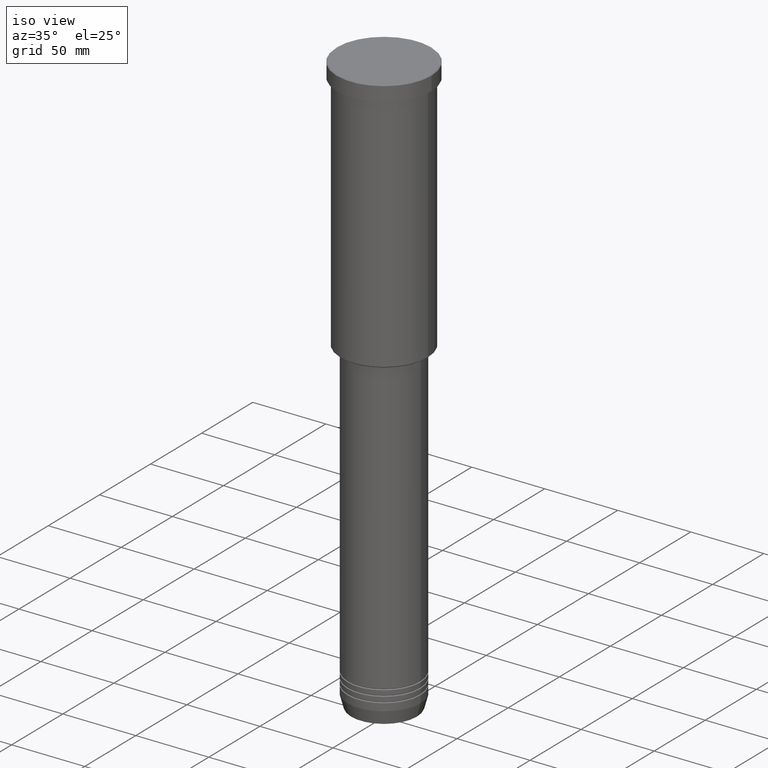
[diagram: clean part render]
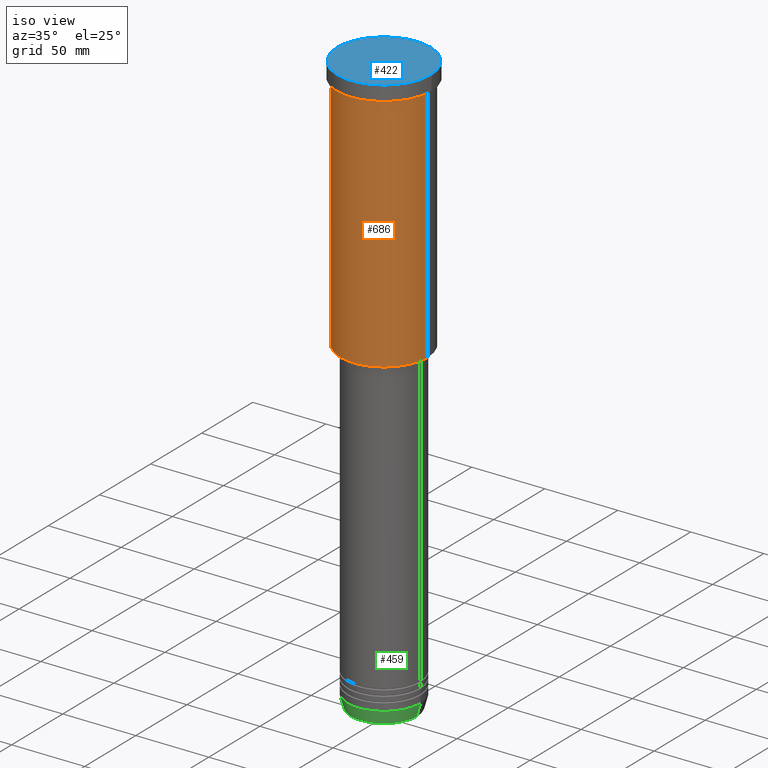
[diagram: same view with three faces highlighted in distinct colors, each labeled with its STEP entity id]
A machine part, iso view with three faces highlighted in distinct colors.
Their STEP definitions:

[orange] entity #686 — the highlighted cylindrical surface (partial cylindrical patch) has radius 30 mm, axis along (-0, -0, 1).
#7 = CARTESIAN_POINT ( 'NONE',  ( 0.000000000000000000, 0.000000000000000000, 0.000000000000000000 ) ) ;
#42 = CARTESIAN_POINT ( 'NONE',  ( 30.00000000000000000, 0.000000000000000000, -10.99999999999999289 ) ) ;
#57 = CARTESIAN_POINT ( 'NONE',  ( 0.000000000000000000, 0.000000000000000000, -10.99999999999999289 ) ) ;
#73 = EDGE_CURVE ( 'NONE', #720, #543, #418, .T. ) ;
#86 = VECTOR ( 'NONE', #856, 1000.000000000000000 ) ;
#97 = FACE_OUTER_BOUND ( 'NONE', #761, .T. ) ;
#139 = AXIS2_PLACEMENT_3D ( 'NONE', #57, #499, #247 ) ;
#201 = LINE ( 'NONE', #546, #616 ) ;
#247 = DIRECTION ( 'NONE',  ( 1.000000000000000000, 0.000000000000000000, 0.000000000000000000 ) ) ;
#279 = ORIENTED_EDGE ( 'NONE', *, *, #73, .F. ) ;
#316 = CARTESIAN_POINT ( 'NONE',  ( -30.00000000000000000, 3.673940397442059178E-15, -10.99999999999999289 ) ) ;
#350 = ORIENTED_EDGE ( 'NONE', *, *, #725, .T. ) ;
#385 = AXIS2_PLACEMENT_3D ( 'NONE', #7, #737, #929 ) ;
#418 = CIRCLE ( 'NONE', #139, 30.00000000000000000 ) ;
#425 = DIRECTION ( 'NONE',  ( -1.000000000000000000, 0.000000000000000000, 0.000000000000000000 ) ) ;
#499 = DIRECTION ( 'NONE',  ( -0.000000000000000000, -0.000000000000000000, 1.000000000000000000 ) ) ;
#536 = VERTEX_POINT ( 'NONE', #862 ) ;
#542 = AXIS2_PLACEMENT_3D ( 'NONE', #786, #1154, #425 ) ;
#543 = VERTEX_POINT ( 'NONE', #42 ) ;
#546 = CARTESIAN_POINT ( 'NONE',  ( -30.00000000000000000, 3.673940397442059178E-15, 0.000000000000000000 ) ) ;
#552 = CYLINDRICAL_SURFACE ( 'NONE', #385, 30.00000000000000000 ) ;
#563 = DIRECTION ( 'NONE',  ( -0.000000000000000000, -0.000000000000000000, 1.000000000000000000 ) ) ;
#616 = VECTOR ( 'NONE', #563, 1000.000000000000000 ) ;
#681 = CARTESIAN_POINT ( 'NONE',  ( 30.00000000000000000, 0.000000000000000000, 0.000000000000000000 ) ) ;
#686 = ADVANCED_FACE ( 'NONE', ( #97 ), #552, .T. ) ;
#720 = VERTEX_POINT ( 'NONE', #316 ) ;
#725 = EDGE_CURVE ( 'NONE', #1073, #543, #1146, .T. ) ;
#737 = DIRECTION ( 'NONE',  ( -0.000000000000000000, -0.000000000000000000, 1.000000000000000000 ) ) ;
#761 = EDGE_LOOP ( 'NONE', ( #894, #897, #350, #279 ) ) ;
#786 = CARTESIAN_POINT ( 'NONE',  ( 0.000000000000000000, 0.000000000000000000, -175.5000000000000284 ) ) ;
#856 = DIRECTION ( 'NONE',  ( -0.000000000000000000, -0.000000000000000000, 1.000000000000000000 ) ) ;
#862 = CARTESIAN_POINT ( 'NONE',  ( -30.00000000000000000, 3.673940397442059178E-15, -175.5000000000000284 ) ) ;
#894 = ORIENTED_EDGE ( 'NONE', *, *, #963, .F. ) ;
#897 = ORIENTED_EDGE ( 'NONE', *, *, #932, .T. ) ;
#929 = DIRECTION ( 'NONE',  ( 1.000000000000000000, 0.000000000000000000, 0.000000000000000000 ) ) ;
#932 = EDGE_CURVE ( 'NONE', #536, #1073, #1067, .T. ) ;
#963 = EDGE_CURVE ( 'NONE', #536, #720, #201, .T. ) ;
#1067 = CIRCLE ( 'NONE', #542, 30.00000000000000000 ) ;
#1073 = VERTEX_POINT ( 'NONE', #1110 ) ;
#1110 = CARTESIAN_POINT ( 'NONE',  ( 30.00000000000000000, 0.000000000000000000, -175.5000000000000284 ) ) ;
#1146 = LINE ( 'NONE', #681, #86 ) ;
#1154 = DIRECTION ( 'NONE',  ( -0.000000000000000000, -0.000000000000000000, 1.000000000000000000 ) ) ;

[blue] entity #422 — the highlighted planar face has unit normal (0, -0, 1).
#151 = DIRECTION ( 'NONE',  ( 1.000000000000000000, 0.000000000000000000, 0.000000000000000000 ) ) ;
#158 = ORIENTED_EDGE ( 'NONE', *, *, #573, .T. ) ;
#167 = DIRECTION ( 'NONE',  ( 1.000000000000000000, 0.000000000000000000, 0.000000000000000000 ) ) ;
#179 = AXIS2_PLACEMENT_3D ( 'NONE', #920, #1009, #363 ) ;
#267 = VERTEX_POINT ( 'NONE', #631 ) ;
#272 = CARTESIAN_POINT ( 'NONE',  ( -32.00000000000002842, 0.000000000000000000, 0.000000000000000000 ) ) ;
#292 = EDGE_LOOP ( 'NONE', ( #545, #158 ) ) ;
#339 = DIRECTION ( 'NONE',  ( -0.000000000000000000, -0.000000000000000000, 1.000000000000000000 ) ) ;
#363 = DIRECTION ( 'NONE',  ( 1.000000000000000000, 0.000000000000000000, 0.000000000000000000 ) ) ;
#366 = AXIS2_PLACEMENT_3D ( 'NONE', #973, #339, #151 ) ;
#404 = DIRECTION ( 'NONE',  ( 0.000000000000000000, -0.000000000000000000, 1.000000000000000000 ) ) ;
#422 = ADVANCED_FACE ( 'NONE', ( #437 ), #701, .T. ) ;
#437 = FACE_OUTER_BOUND ( 'NONE', #292, .T. ) ;
#545 = ORIENTED_EDGE ( 'NONE', *, *, #863, .T. ) ;
#560 = CIRCLE ( 'NONE', #366, 32.00000000000002842 ) ;
#573 = EDGE_CURVE ( 'NONE', #267, #1048, #1156, .T. ) ;
#631 = CARTESIAN_POINT ( 'NONE',  ( 32.00000000000002842, 3.949485927250216417E-15, 0.000000000000000000 ) ) ;
#701 = PLANE ( 'NONE',  #1065 ) ;
#863 = EDGE_CURVE ( 'NONE', #1048, #267, #560, .T. ) ;
#920 = CARTESIAN_POINT ( 'NONE',  ( 0.000000000000000000, 0.000000000000000000, 0.000000000000000000 ) ) ;
#973 = CARTESIAN_POINT ( 'NONE',  ( 0.000000000000000000, 0.000000000000000000, 0.000000000000000000 ) ) ;
#991 = CARTESIAN_POINT ( 'NONE',  ( 0.000000000000000000, 0.000000000000000000, 0.000000000000000000 ) ) ;
#1009 = DIRECTION ( 'NONE',  ( -0.000000000000000000, -0.000000000000000000, 1.000000000000000000 ) ) ;
#1048 = VERTEX_POINT ( 'NONE', #272 ) ;
#1065 = AXIS2_PLACEMENT_3D ( 'NONE', #991, #404, #167 ) ;
#1156 = CIRCLE ( 'NONE', #179, 32.00000000000002842 ) ;

[green] entity #459 — the highlighted conical surface has half-angle 15 deg.
#26 = VERTEX_POINT ( 'NONE', #149 ) ;
#93 = EDGE_CURVE ( 'NONE', #26, #783, #708, .T. ) ;
#95 = VERTEX_POINT ( 'NONE', #251 ) ;
#113 = EDGE_CURVE ( 'NONE', #95, #1119, #572, .T. ) ;
#125 = CARTESIAN_POINT ( 'NONE',  ( 25.00000000000000000, 0.000000000000000000, -391.0000000000000000 ) ) ;
#149 = CARTESIAN_POINT ( 'NONE',  ( -22.68775668727494477, 2.920032929279452581E-15, -399.6294095225512706 ) ) ;
#222 = EDGE_CURVE ( 'NONE', #26, #95, #349, .T. ) ;
#251 = CARTESIAN_POINT ( 'NONE',  ( -25.00000000000000000, 3.061616997868383043E-15, -391.0000000000000000 ) ) ;
#269 = CARTESIAN_POINT ( 'NONE',  ( 25.00000000000000000, 0.000000000000000000, -391.0000000000000000 ) ) ;
#281 = DIRECTION ( 'NONE',  ( 0.2588190451025215166, 0.000000000000000000, 0.9659258262890679791 ) ) ;
#288 = VECTOR ( 'NONE', #281, 1000.000000000000114 ) ;
#303 = AXIS2_PLACEMENT_3D ( 'NONE', #367, #828, #438 ) ;
#304 = CONICAL_SURFACE ( 'NONE', #674, 25.00000000000000000, 0.2617993877991502960 ) ;
#349 = LINE ( 'NONE', #1182, #1155 ) ;
#358 = LINE ( 'NONE', #269, #288 ) ;
#367 = CARTESIAN_POINT ( 'NONE',  ( 0.000000000000000000, 0.000000000000000000, -391.0000000000000000 ) ) ;
#431 = DIRECTION ( 'NONE',  ( 1.000000000000000000, 0.000000000000000000, 0.000000000000000000 ) ) ;
#438 = DIRECTION ( 'NONE',  ( 1.000000000000000000, 0.000000000000000000, 0.000000000000000000 ) ) ;
#459 = ADVANCED_FACE ( 'NONE', ( #589 ), #304, .T. ) ;
#534 = DIRECTION ( 'NONE',  ( -0.2588190451025215166, 3.169619151431774802E-17, 0.9659258262890679791 ) ) ;
#554 = ORIENTED_EDGE ( 'NONE', *, *, #583, .T. ) ;
#572 = CIRCLE ( 'NONE', #303, 25.00000000000000000 ) ;
#583 = EDGE_CURVE ( 'NONE', #783, #1119, #358, .T. ) ;
#589 = FACE_OUTER_BOUND ( 'NONE', #824, .T. ) ;
#614 = DIRECTION ( 'NONE',  ( -0.000000000000000000, -0.000000000000000000, 1.000000000000000000 ) ) ;
#674 = AXIS2_PLACEMENT_3D ( 'NONE', #772, #1082, #431 ) ;
#697 = CARTESIAN_POINT ( 'NONE',  ( 0.000000000000000000, 0.000000000000000000, -399.6294095225512706 ) ) ;
#708 = CIRCLE ( 'NONE', #846, 22.68775668727494477 ) ;
#739 = ORIENTED_EDGE ( 'NONE', *, *, #113, .F. ) ;
#772 = CARTESIAN_POINT ( 'NONE',  ( 0.000000000000000000, 0.000000000000000000, -391.0000000000000000 ) ) ;
#783 = VERTEX_POINT ( 'NONE', #1128 ) ;
#824 = EDGE_LOOP ( 'NONE', ( #1161, #855, #554, #739 ) ) ;
#828 = DIRECTION ( 'NONE',  ( -0.000000000000000000, -0.000000000000000000, 1.000000000000000000 ) ) ;
#846 = AXIS2_PLACEMENT_3D ( 'NONE', #697, #614, #1072 ) ;
#855 = ORIENTED_EDGE ( 'NONE', *, *, #93, .T. ) ;
#1072 = DIRECTION ( 'NONE',  ( 1.000000000000000000, 0.000000000000000000, 0.000000000000000000 ) ) ;
#1082 = DIRECTION ( 'NONE',  ( -0.000000000000000000, -0.000000000000000000, 1.000000000000000000 ) ) ;
#1119 = VERTEX_POINT ( 'NONE', #125 ) ;
#1128 = CARTESIAN_POINT ( 'NONE',  ( 22.68775668727494477, 0.000000000000000000, -399.6294095225512706 ) ) ;
#1155 = VECTOR ( 'NONE', #534, 1000.000000000000114 ) ;
#1161 = ORIENTED_EDGE ( 'NONE', *, *, #222, .F. ) ;
#1182 = CARTESIAN_POINT ( 'NONE',  ( -25.00000000000000000, 3.061616997868383043E-15, -391.0000000000000000 ) ) ;